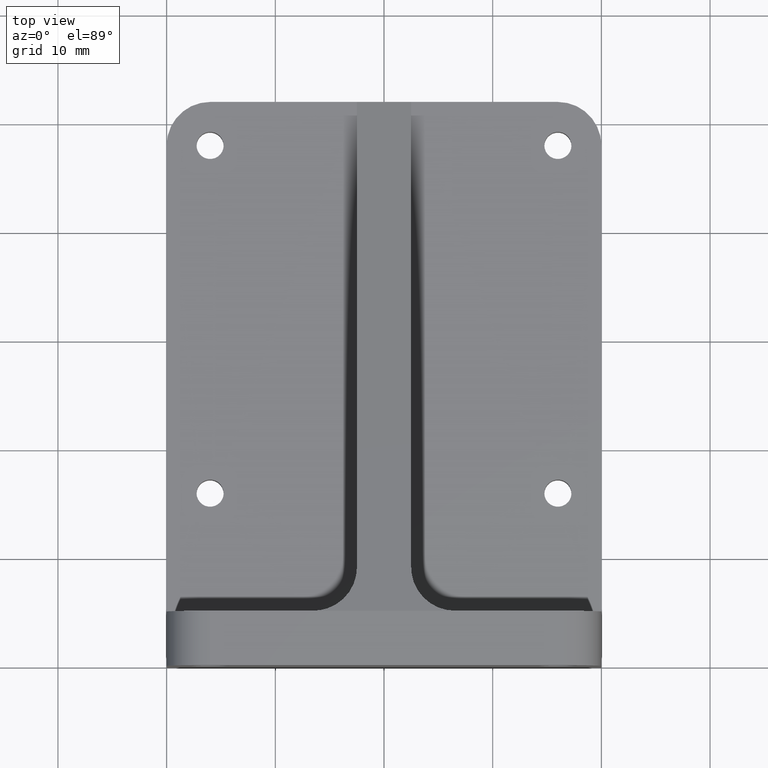
[diagram: clean part render]
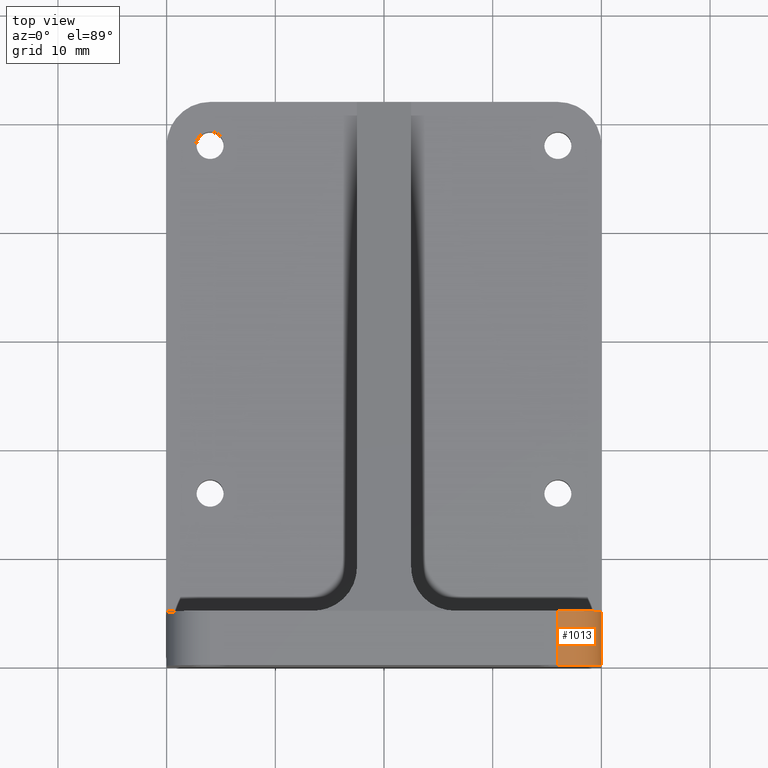
[diagram: same view with one face highlighted and labeled with its STEP entity id]
A machine part, top view. The second image highlights one B-rep face of the part: STEP entity #1013.
In plain terms, the highlighted cylindrical surface (partial cylindrical patch) has radius 4 mm, axis along (0, -1, 0).
Its self-contained STEP definition (entity closure, byte-faithful):
#44 = DIRECTION ( 'NONE',  ( 0.0000000000000000000, -1.000000000000000000, 0.0000000000000000000 ) ) ;
#101 = AXIS2_PLACEMENT_3D ( 'NONE', #154, #928, #137 ) ;
#115 = VERTEX_POINT ( 'NONE', #713 ) ;
#116 = LINE ( 'NONE', #802, #455 ) ;
#137 = DIRECTION ( 'NONE',  ( 0.0000000000000000000, -1.224646799147352961E-16, 1.000000000000000000 ) ) ;
#154 = CARTESIAN_POINT ( 'NONE',  ( 16.00000000000000000, -1.347111479062088405E-15, 11.00000000000000000 ) ) ;
#188 = EDGE_LOOP ( 'NONE', ( #1014, #969, #996, #558 ) ) ;
#203 = CARTESIAN_POINT ( 'NONE',  ( 16.00000000000000000, -1.836970198721029589E-15, 15.00000000000000000 ) ) ;
#229 = DIRECTION ( 'NONE',  ( 1.000000000000000000, 0.0000000000000000000, 2.602085213965210642E-15 ) ) ;
#244 = AXIS2_PLACEMENT_3D ( 'NONE', #656, #284, #1147 ) ;
#258 = EDGE_CURVE ( 'NONE', #667, #712, #881, .T. ) ;
#282 = CARTESIAN_POINT ( 'NONE',  ( 20.00000000000000000, -1.347111479062088405E-15, 11.00000000000000000 ) ) ;
#284 = DIRECTION ( 'NONE',  ( 0.0000000000000000000, -1.000000000000000000, 0.0000000000000000000 ) ) ;
#455 = VECTOR ( 'NONE', #44, 1000.000000000000000 ) ;
#480 = LINE ( 'NONE', #561, #906 ) ;
#497 = CIRCLE ( 'NONE', #761, 4.000000000000000000 ) ;
#558 = ORIENTED_EDGE ( 'NONE', *, *, #1191, .F. ) ;
#561 = CARTESIAN_POINT ( 'NONE',  ( 16.00000000000000000, -1.836970198721029589E-15, 15.00000000000000000 ) ) ;
#569 = CARTESIAN_POINT ( 'NONE',  ( 16.00000000000000000, 4.999999999999998224, 11.00000000000000000 ) ) ;
#570 = DIRECTION ( 'NONE',  ( -0.0000000000000000000, 1.000000000000000000, -0.0000000000000000000 ) ) ;
#622 = EDGE_CURVE ( 'NONE', #115, #983, #497, .T. ) ;
#646 = FACE_OUTER_BOUND ( 'NONE', #188, .T. ) ;
#656 = CARTESIAN_POINT ( 'NONE',  ( 16.00000000000000000, 0.0000000000000000000, 11.00000000000000000 ) ) ;
#667 = VERTEX_POINT ( 'NONE', #282 ) ;
#712 = VERTEX_POINT ( 'NONE', #203 ) ;
#713 = CARTESIAN_POINT ( 'NONE',  ( 16.00000000000000000, 4.999999999999998224, 15.00000000000000000 ) ) ;
#749 = CYLINDRICAL_SURFACE ( 'NONE', #244, 4.000000000000000000 ) ;
#761 = AXIS2_PLACEMENT_3D ( 'NONE', #569, #997, #229 ) ;
#802 = CARTESIAN_POINT ( 'NONE',  ( 20.00000000000000000, 0.0000000000000000000, 11.00000000000000000 ) ) ;
#881 = CIRCLE ( 'NONE', #101, 4.000000000000000000 ) ;
#906 = VECTOR ( 'NONE', #570, 1000.000000000000000 ) ;
#928 = DIRECTION ( 'NONE',  ( 0.0000000000000000000, -1.000000000000000000, -1.224646799147353207E-16 ) ) ;
#969 = ORIENTED_EDGE ( 'NONE', *, *, #1054, .F. ) ;
#983 = VERTEX_POINT ( 'NONE', #1205 ) ;
#996 = ORIENTED_EDGE ( 'NONE', *, *, #258, .F. ) ;
#997 = DIRECTION ( 'NONE',  ( 4.956352788505164624E-17, 1.000000000000000000, 0.0000000000000000000 ) ) ;
#1013 = ADVANCED_FACE ( 'NONE', ( #646 ), #749, .T. ) ;
#1014 = ORIENTED_EDGE ( 'NONE', *, *, #622, .F. ) ;
#1054 = EDGE_CURVE ( 'NONE', #712, #115, #480, .T. ) ;
#1147 = DIRECTION ( 'NONE',  ( 0.0000000000000000000, 0.0000000000000000000, -1.000000000000000000 ) ) ;
#1191 = EDGE_CURVE ( 'NONE', #983, #667, #116, .T. ) ;
#1205 = CARTESIAN_POINT ( 'NONE',  ( 20.00000000000000000, 4.999999999999998224, 10.99999999999999645 ) ) ;